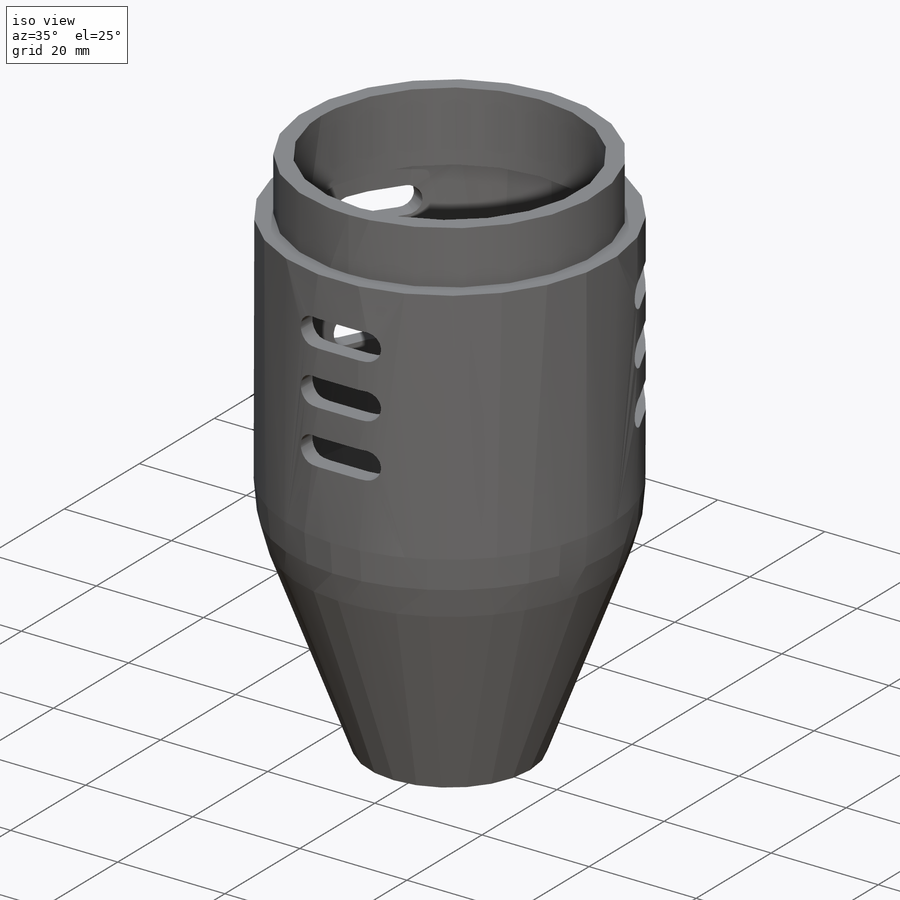
[diagram: iso view]
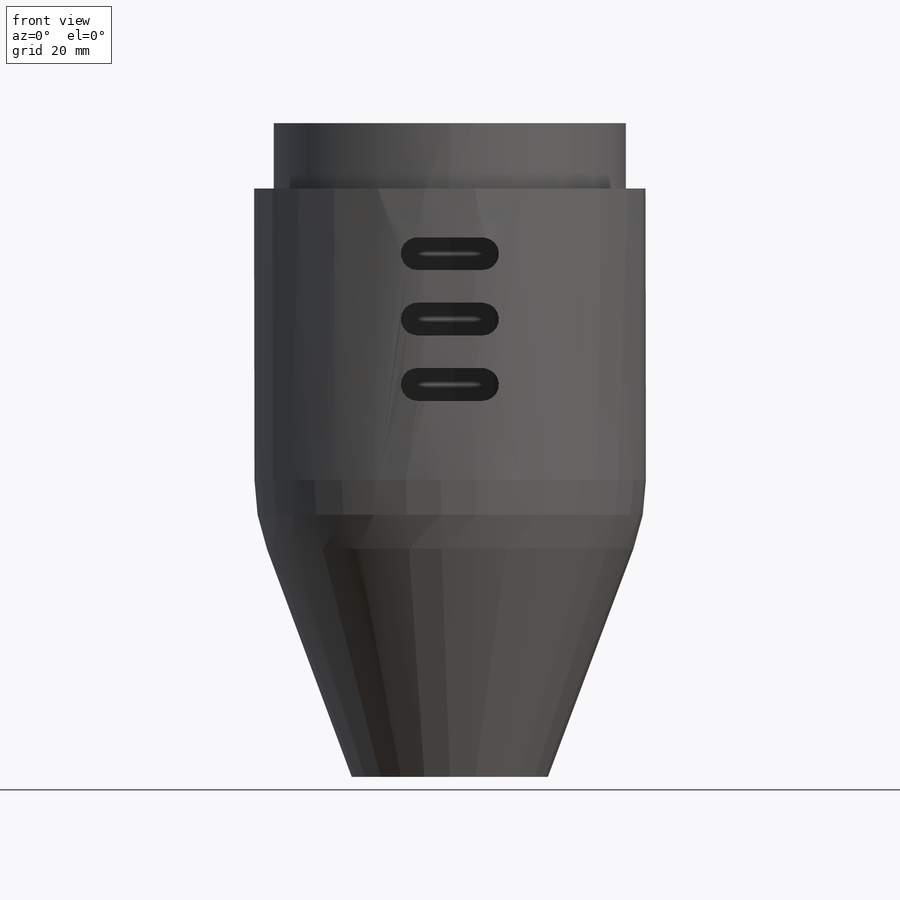
[diagram: front view]
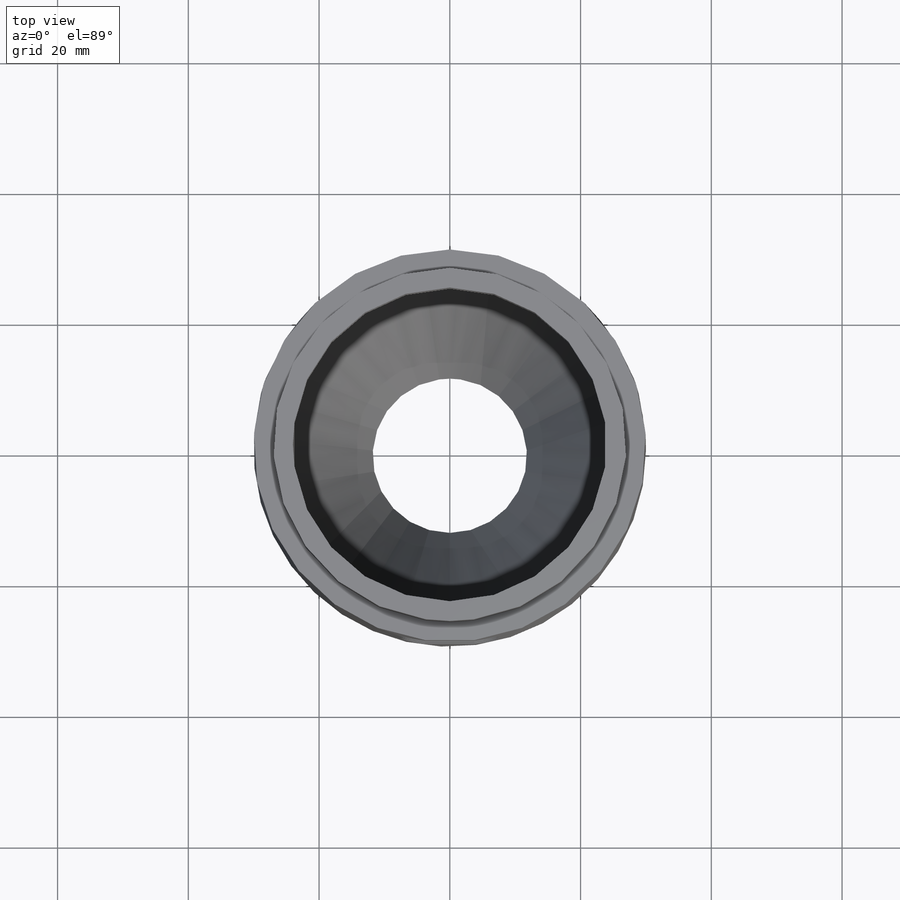
[diagram: top view]
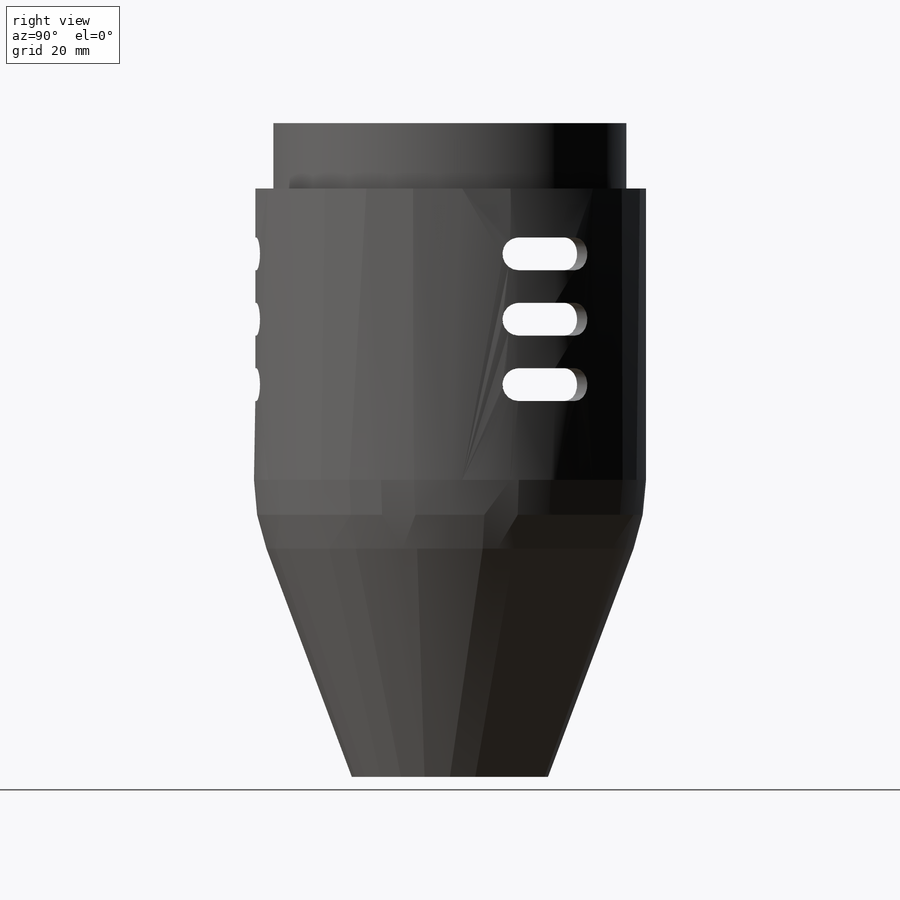
[diagram: right view]
SOLIDWORKS PART (.sldprt)
format: sldprt  version: not decoded by parser v0  size: 220,672 bytes
history: native  units: mm
features: plane x3, sketch x3, material x1, revolve x1, shell x1, cut_extrude x1, pattern_circular x1 (+12 scaffold rows collapsed)
feature tree (23):
  scaffold x12  (default folders/planes/origin — collapsed)
  material  "Material <sin especificar>"
  plane  "Alzado"
  plane  "Planta"
  plane  "Vista lateral"
  sketch  "Croquis1"  dims[D5=30.0mm D1=90.0mm D2=30.0mm D3=15.0mm D4=50.0mm]
  revolve  "Revolución1"  Angle=360deg
  sketch  "Croquis2"  dims[c1.D1=3.0mm c2.D1=10.0mm c2.D5=3.0mm c2.D6=10.0mm c2.D7=5.0mm]
  shell  "Vaciado1"  Thickness=3mm
  sketch  "Croquis3"  dims[c1.D2=2.5mm c1.D1=5.0mm c1.D3=10.0mm c1.D4=60.0mm c1.D5=5.0mm c2.D4=60.0mm]
  cut_extrude  "Cortar-Extruir1"  [1 undecoded]
  pattern_circular  "MatrizC1"  Count=3  [1 undecoded]
decode coverage: 6 of 7 modeling features carry decoded parameters
note: 2 parameter values undecoded
note: suppression state not decoded; provenance and decode notes live in map.json
